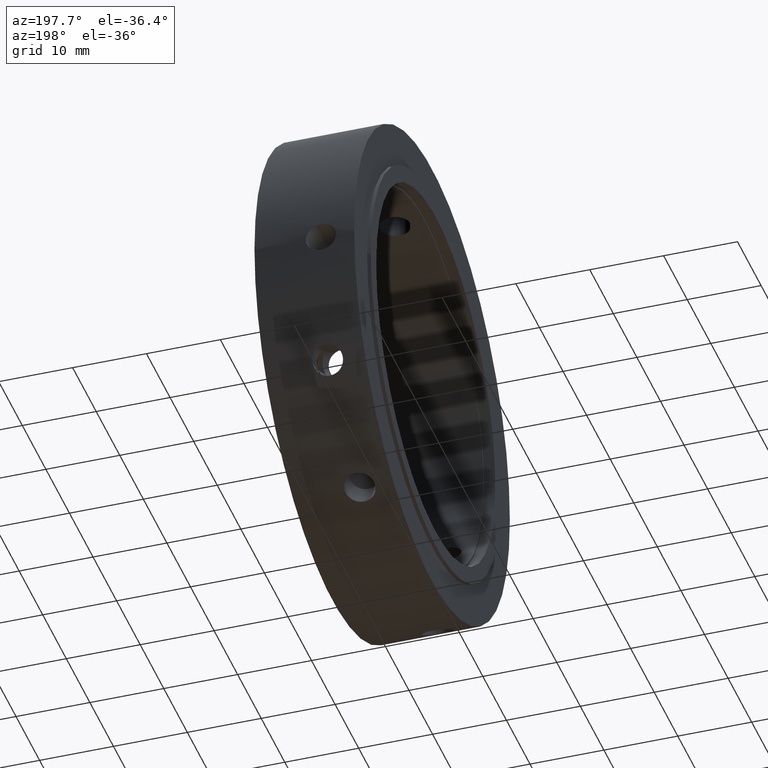
[diagram: clean part render]
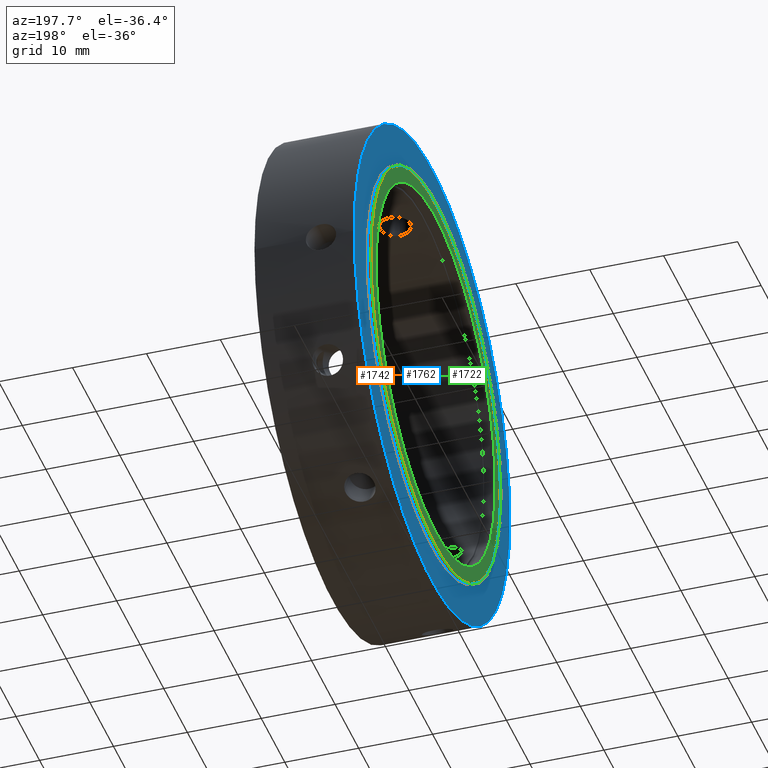
[diagram: same view with three faces highlighted in distinct colors, each labeled with its STEP entity id]
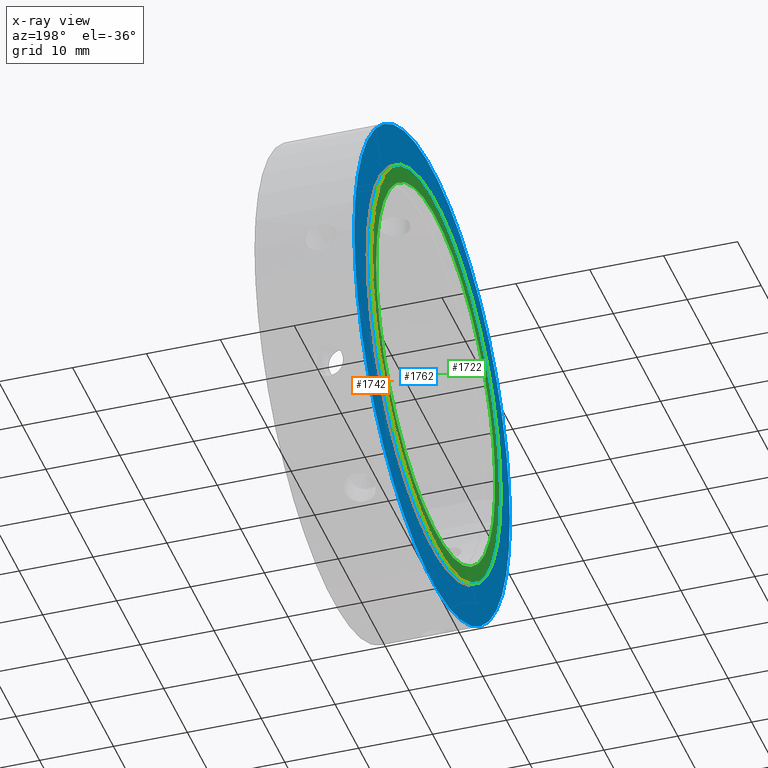
[diagram: x-ray of the same camera — body ghosted, the three highlighted faces saturated]
A machine part, auxiliary view with three faces highlighted in distinct colors.
The next image is the same camera in x-ray (body ghosted, the three faces saturated) — at least one of them is partly hidden behind the body in this view.
Their STEP definitions:

[orange] entity #1742 — the highlighted cylindrical surface (bore or boss wall) has radius 27.5 mm, axis along (1, 0, 0).
#1708=CARTESIAN_POINT('',(-8.881784E-015,27.499999999999996,0.0));
#1709=VERTEX_POINT('',#1708);
#1710=CARTESIAN_POINT('',(-8.881784E-015,0.0,0.0));
#1711=DIRECTION('',(1.0,0.0,0.0));
#1712=DIRECTION('',(0.0,1.0,0.0));
#1713=AXIS2_PLACEMENT_3D('',#1710,#1711,#1712);
#1714=CIRCLE('',#1713,27.499999999999996);
#1715=EDGE_CURVE('',#1709,#1709,#1714,.T.);
#1723=CARTESIAN_POINT('',(0.249999999999992,0.0,0.0));
#1724=DIRECTION('',(1.0,0.0,0.0));
#1725=DIRECTION('',(0.0,1.0,0.0));
#1726=AXIS2_PLACEMENT_3D('',#1723,#1724,#1725);
#1727=CYLINDRICAL_SURFACE('',#1726,27.499999999999996);
#1728=CARTESIAN_POINT('',(0.499999999999994,27.499999999999996,0.0));
#1729=VERTEX_POINT('',#1728);
#1730=CARTESIAN_POINT('',(0.499999999999994,0.0,0.0));
#1731=DIRECTION('',(1.0,0.0,0.0));
#1732=DIRECTION('',(0.0,1.0,0.0));
#1733=AXIS2_PLACEMENT_3D('',#1730,#1731,#1732);
#1734=CIRCLE('',#1733,27.499999999999996);
#1735=EDGE_CURVE('',#1729,#1729,#1734,.T.);
#1736=ORIENTED_EDGE('',*,*,#1735,.F.);
#1737=EDGE_LOOP('',(#1736));
#1738=FACE_OUTER_BOUND('',#1737,.T.);
#1739=ORIENTED_EDGE('',*,*,#1715,.T.);
#1740=EDGE_LOOP('',(#1739));
#1741=FACE_BOUND('',#1740,.T.);
#1742=ADVANCED_FACE('',(#1738,#1741),#1727,.T.);

[blue] entity #1762 — the highlighted planar face has unit normal (-1, 0, 0).
#1728=CARTESIAN_POINT('',(0.499999999999994,27.499999999999996,0.0));
#1729=VERTEX_POINT('',#1728);
#1730=CARTESIAN_POINT('',(0.499999999999994,0.0,0.0));
#1731=DIRECTION('',(1.0,0.0,0.0));
#1732=DIRECTION('',(0.0,1.0,0.0));
#1733=AXIS2_PLACEMENT_3D('',#1730,#1731,#1732);
#1734=CIRCLE('',#1733,27.499999999999996);
#1735=EDGE_CURVE('',#1729,#1729,#1734,.T.);
#1743=CARTESIAN_POINT('',(0.499999999999994,30.249999999999993,0.0));
#1744=DIRECTION('',(-1.0,0.0,0.0));
#1745=DIRECTION('',(0.0,0.0,1.0));
#1746=AXIS2_PLACEMENT_3D('',#1743,#1744,#1745);
#1747=PLANE('',#1746);
#1748=CARTESIAN_POINT('',(0.499999999999994,33.0,0.0));
#1749=VERTEX_POINT('',#1748);
#1750=CARTESIAN_POINT('',(0.499999999999994,0.0,0.0));
#1751=DIRECTION('',(1.0,0.0,0.0));
#1752=DIRECTION('',(0.0,1.0,0.0));
#1753=AXIS2_PLACEMENT_3D('',#1750,#1751,#1752);
#1754=CIRCLE('',#1753,33.0);
#1755=EDGE_CURVE('',#1749,#1749,#1754,.T.);
#1756=ORIENTED_EDGE('',*,*,#1755,.F.);
#1757=EDGE_LOOP('',(#1756));
#1758=FACE_OUTER_BOUND('',#1757,.T.);
#1759=ORIENTED_EDGE('',*,*,#1735,.T.);
#1760=EDGE_LOOP('',(#1759));
#1761=FACE_BOUND('',#1760,.T.);
#1762=ADVANCED_FACE('',(#1758,#1761),#1747,.T.);

[green] entity #1722 — the highlighted planar face has unit normal (-1, 0, 0).
#1688=CARTESIAN_POINT('',(-6.938894E-015,25.250000000000004,0.0));
#1689=VERTEX_POINT('',#1688);
#1690=CARTESIAN_POINT('',(-6.938894E-015,0.0,0.0));
#1691=DIRECTION('',(1.0,0.0,0.0));
#1692=DIRECTION('',(0.0,1.0,0.0));
#1693=AXIS2_PLACEMENT_3D('',#1690,#1691,#1692);
#1694=CIRCLE('',#1693,25.250000000000004);
#1695=EDGE_CURVE('',#1689,#1689,#1694,.T.);
#1703=CARTESIAN_POINT('',(-7.910339E-015,26.375,0.0));
#1704=DIRECTION('',(-1.0,0.0,0.0));
#1705=DIRECTION('',(0.0,0.0,1.0));
#1706=AXIS2_PLACEMENT_3D('',#1703,#1704,#1705);
#1707=PLANE('',#1706);
#1708=CARTESIAN_POINT('',(-8.881784E-015,27.499999999999996,0.0));
#1709=VERTEX_POINT('',#1708);
#1710=CARTESIAN_POINT('',(-8.881784E-015,0.0,0.0));
#1711=DIRECTION('',(1.0,0.0,0.0));
#1712=DIRECTION('',(0.0,1.0,0.0));
#1713=AXIS2_PLACEMENT_3D('',#1710,#1711,#1712);
#1714=CIRCLE('',#1713,27.499999999999996);
#1715=EDGE_CURVE('',#1709,#1709,#1714,.T.);
#1716=ORIENTED_EDGE('',*,*,#1715,.F.);
#1717=EDGE_LOOP('',(#1716));
#1718=FACE_OUTER_BOUND('',#1717,.T.);
#1719=ORIENTED_EDGE('',*,*,#1695,.T.);
#1720=EDGE_LOOP('',(#1719));
#1721=FACE_BOUND('',#1720,.T.);
#1722=ADVANCED_FACE('',(#1718,#1721),#1707,.T.);